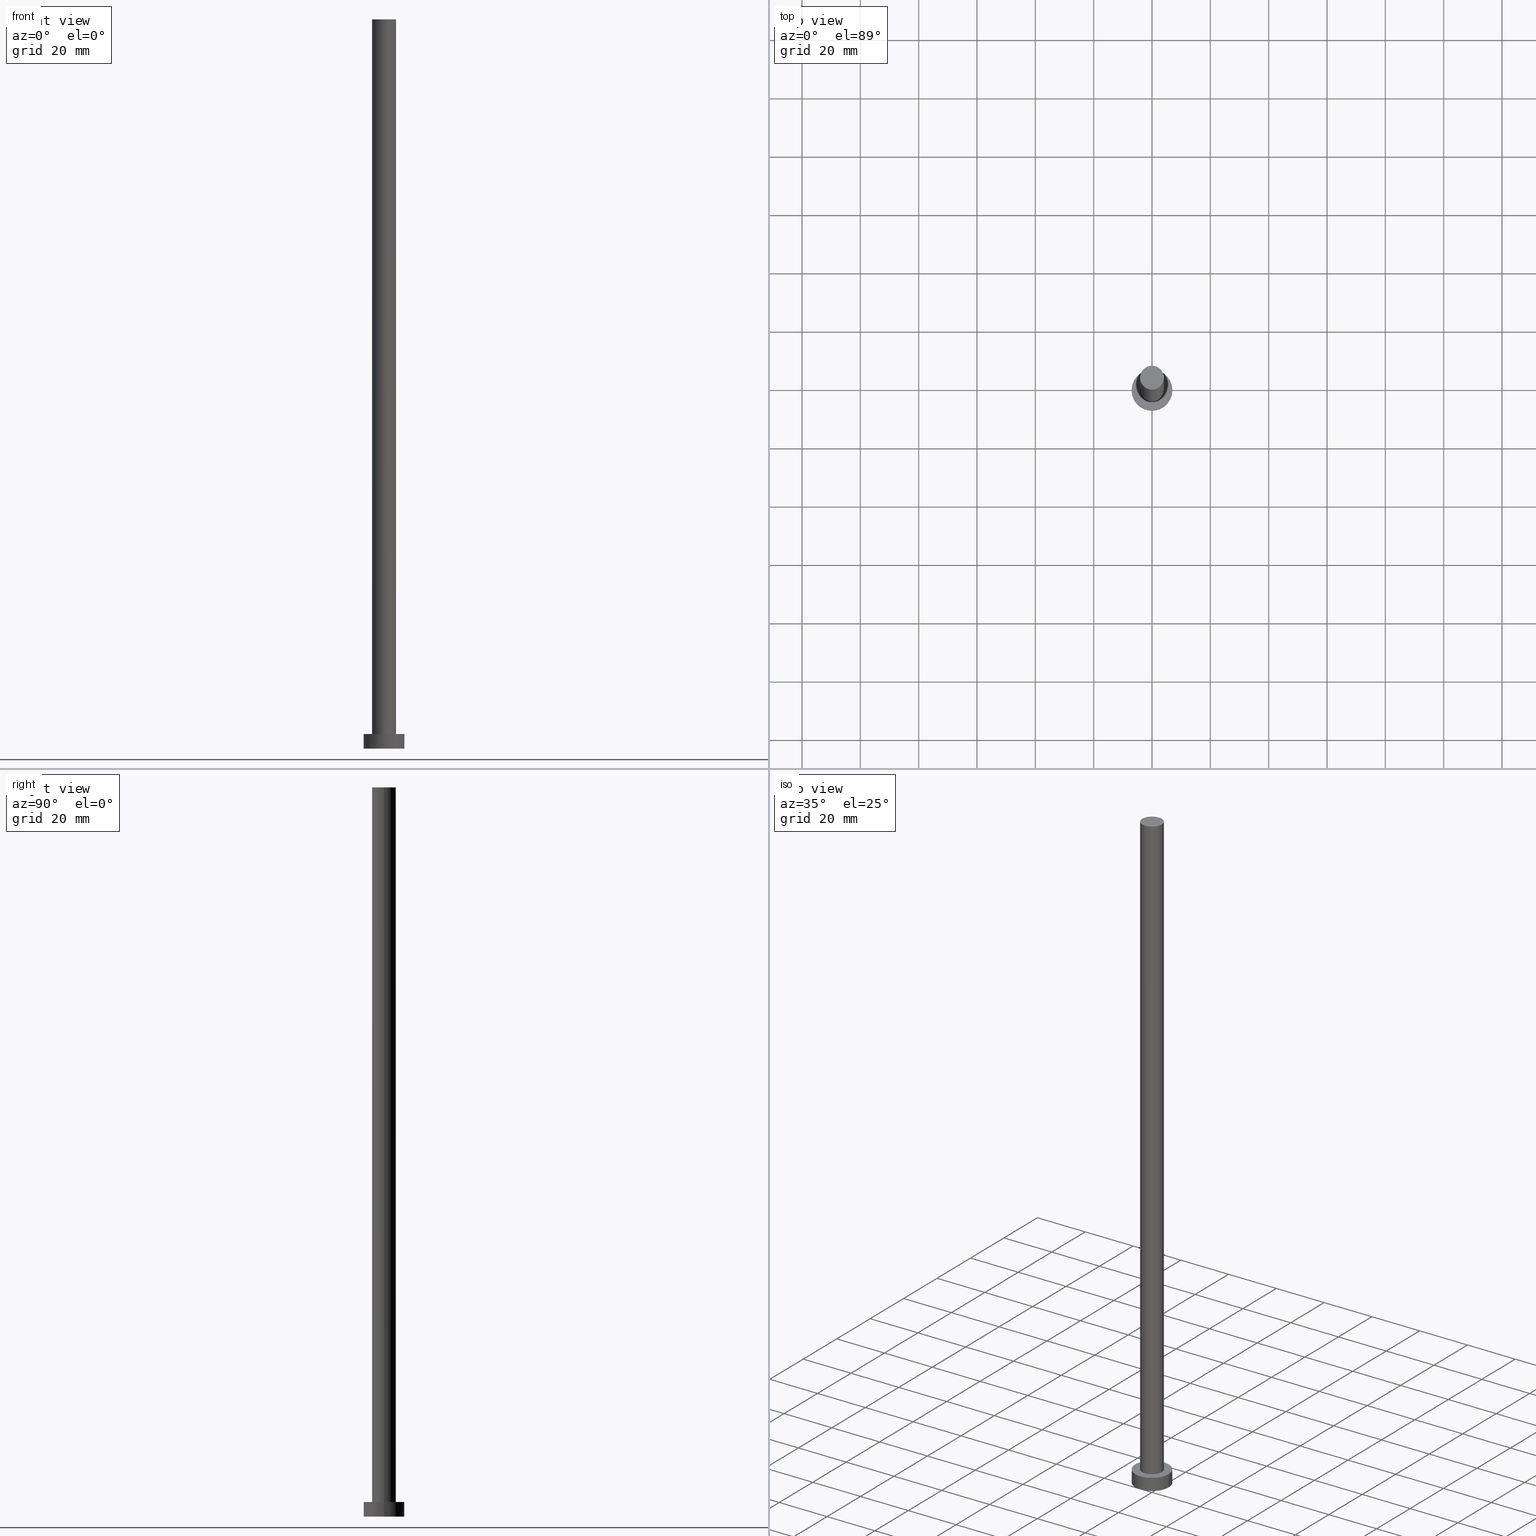
[diagram: canonical four-view strip — front | top / right | iso, engineering-drawing reading convention]
A machine part, canonical four-view strip (front | top / right | iso — engineering-drawing reading convention). The complete STEP part file that produces these views, byte-faithful:
ISO-10303-21;
HEADER;
FILE_DESCRIPTION (( 'STEP AP203' ),
    '1' );
FILE_NAME ('0139.STEP',
    '2023-02-13T10:52:26',
    ( '' ),
    ( '' ),
    'SwSTEP 2.0',
    'SolidWorks 2019',
    '' );
FILE_SCHEMA (( 'CONFIG_CONTROL_DESIGN' ));
ENDSEC;

DATA;
#1 = EDGE_LOOP ( 'NONE', ( #200, #201 ) ) ;
#2 = ORIENTED_EDGE ( 'NONE', *, *, #164, .F. ) ;
#3 = ADVANCED_FACE ( 'NONE', ( #152 ), #114, .F. ) ;
#4 = EDGE_CURVE ( 'NONE', #144, #126, #17, .T. ) ;
#5 = DIRECTION ( 'NONE',  ( 0.000000000000000000, 0.000000000000000000, 1.000000000000000000 ) ) ;
#6 = CARTESIAN_POINT ( 'NONE',  ( 0.000000000000000000, 0.000000000000000000, 250.0000000000000000 ) ) ;
#7 = CIRCLE ( 'NONE', #72, 4.099999999999999645 ) ;
#8 = APPROVAL_PERSON_ORGANIZATION ( #195, #175, #179 ) ;
#9 = CARTESIAN_POINT ( 'NONE',  ( -7.000000000000000000, 0.000000000000000000, 5.000000000000000000 ) ) ;
#10 = APPROVAL_DATE_TIME ( #249, #88 ) ;
#11 = VERTEX_POINT ( 'NONE', #207 ) ;
#12 = DIRECTION ( 'NONE',  ( -1.000000000000000000, 0.000000000000000000, 0.000000000000000000 ) ) ;
#13 = ORIENTED_EDGE ( 'NONE', *, *, #4, .F. ) ;
#14 = PERSON_AND_ORGANIZATION_ROLE ( 'creator' ) ;
#15 = AXIS2_PLACEMENT_3D ( 'NONE', #153, #167, #12 ) ;
#16 = CYLINDRICAL_SURFACE ( 'NONE', #42, 4.099999999999999645 ) ;
#17 = CIRCLE ( 'NONE', #23, 7.000000000000000000 ) ;
#18 = CARTESIAN_POINT ( 'NONE',  ( -4.099999999999999645, 0.000000000000000000, 5.000000000000000000 ) ) ;
#19 = DIRECTION ( 'NONE',  ( 0.000000000000000000, 0.000000000000000000, 1.000000000000000000 ) ) ;
#20 = ADVANCED_FACE ( 'NONE', ( #227 ), #33, .T. ) ;
#21 = DIRECTION ( 'NONE',  ( 0.000000000000000000, 0.000000000000000000, 1.000000000000000000 ) ) ;
#22 = APPROVAL_PERSON_ORGANIZATION ( #185, #88, #194 ) ;
#23 = AXIS2_PLACEMENT_3D ( 'NONE', #225, #63, #145 ) ;
#24 = DIRECTION ( 'NONE',  ( 1.000000000000000000, 0.000000000000000000, 0.000000000000000000 ) ) ;
#25 = DESIGN_CONTEXT ( 'detailed design', #73, 'design' ) ;
#26 = ORIENTED_EDGE ( 'NONE', *, *, #62, .F. ) ;
#27 = EDGE_CURVE ( 'NONE', #234, #160, #115, .T. ) ;
#28 = PERSON_AND_ORGANIZATION_ROLE ( 'classification_officer' ) ;
#29 = CARTESIAN_POINT ( 'NONE',  ( 0.000000000000000000, 0.000000000000000000, 0.000000000000000000 ) ) ;
#30 = DIRECTION ( 'NONE',  ( 1.000000000000000000, 0.000000000000000000, 0.000000000000000000 ) ) ;
#31 = EDGE_CURVE ( 'NONE', #36, #244, #52, .T. ) ;
#32 = CARTESIAN_POINT ( 'NONE',  ( 7.000000000000000000, 8.572527594031473190E-16, 5.000000000000000000 ) ) ;
#33 = PLANE ( 'NONE',  #78 ) ;
#34 = PERSON_AND_ORGANIZATION ( #44, #39 ) ;
#35 = FACE_BOUND ( 'NONE', #197, .T. ) ;
#36 = VERTEX_POINT ( 'NONE', #98 ) ;
#37 = APPROVAL ( #230, 'NEUR�EN�' ) ;
#38 = VERTEX_POINT ( 'NONE', #162 ) ;
#39 = ORGANIZATION ( 'NEUR�EN�', 'NEUR�EN�', '' ) ;
#40 =( LENGTH_UNIT ( ) NAMED_UNIT ( * ) SI_UNIT ( .MILLI., .METRE. ) );
#41 = CC_DESIGN_DATE_AND_TIME_ASSIGNMENT ( #105, #131, ( #209 ) ) ;
#42 = AXIS2_PLACEMENT_3D ( 'NONE', #147, #87, #166 ) ;
#43 = CARTESIAN_POINT ( 'NONE',  ( 7.000000000000000000, 8.572527594031473190E-16, 5.000000000000000000 ) ) ;
#44 = PERSON ( 'NEUR�EN�', 'NEUR�EN�', 'NEUR�EN�', ('NEUR�EN�'), ('NEUR�EN�'), ('NEUR�EN�') ) ;
#45 = COORDINATED_UNIVERSAL_TIME_OFFSET ( 1, 0, .AHEAD. ) ;
#46 = CIRCLE ( 'NONE', #191, 4.099999999999999645 ) ;
#47 = AXIS2_PLACEMENT_3D ( 'NONE', #69, #116, #202 ) ;
#48 = CC_DESIGN_DATE_AND_TIME_ASSIGNMENT ( #189, #124, ( #246 ) ) ;
#49 = PERSON_AND_ORGANIZATION ( #44, #39 ) ;
#50 = CC_DESIGN_PERSON_AND_ORGANIZATION_ASSIGNMENT ( #223, #123, ( #113 ) ) ;
#51 = COORDINATED_UNIVERSAL_TIME_OFFSET ( 1, 0, .AHEAD. ) ;
#52 = CIRCLE ( 'NONE', #173, 4.099999999999999645 ) ;
#53 = ORIENTED_EDGE ( 'NONE', *, *, #239, .T. ) ;
#54 =( NAMED_UNIT ( * ) PLANE_ANGLE_UNIT ( ) SI_UNIT ( $, .RADIAN. ) );
#55 = CARTESIAN_POINT ( 'NONE',  ( -4.099999999999999645, 0.000000000000000000, 250.0000000000000000 ) ) ;
#56 = DIRECTION ( 'NONE',  ( -1.000000000000000000, 0.000000000000000000, 0.000000000000000000 ) ) ;
#57 = ORIENTED_EDGE ( 'NONE', *, *, #150, .F. ) ;
#58 = ORIENTED_EDGE ( 'NONE', *, *, #150, .T. ) ;
#59 = DIRECTION ( 'NONE',  ( 0.000000000000000000, 0.000000000000000000, 1.000000000000000000 ) ) ;
#60 = VECTOR ( 'NONE', #253, 1000.000000000000000 ) ;
#61 = DIRECTION ( 'NONE',  ( 1.000000000000000000, 0.000000000000000000, 0.000000000000000000 ) ) ;
#62 = EDGE_CURVE ( 'NONE', #126, #144, #86, .T. ) ;
#63 = DIRECTION ( 'NONE',  ( 0.000000000000000000, 0.000000000000000000, 1.000000000000000000 ) ) ;
#64 = ORIENTED_EDGE ( 'NONE', *, *, #31, .T. ) ;
#65 = CIRCLE ( 'NONE', #47, 7.000000000000000000 ) ;
#66 = APPROVAL_DATE_TIME ( #68, #175 ) ;
#67 = FACE_OUTER_BOUND ( 'NONE', #248, .T. ) ;
#68 = DATE_AND_TIME ( #255, #79 ) ;
#69 = CARTESIAN_POINT ( 'NONE',  ( 0.000000000000000000, 0.000000000000000000, 0.000000000000000000 ) ) ;
#70 = PRODUCT_DEFINITION_SHAPE ( 'NONE', 'NONE',  #209 ) ;
#71 = PERSON_AND_ORGANIZATION ( #44, #39 ) ;
#72 = AXIS2_PLACEMENT_3D ( 'NONE', #6, #238, #24 ) ;
#73 = APPLICATION_CONTEXT ( 'configuration controlled 3d designs of mechanical parts and assemblies' ) ;
#74 = LOCAL_TIME ( 11, 52, 26.00000000000000000, #174 ) ;
#75 = ORIENTED_EDGE ( 'NONE', *, *, #164, .T. ) ;
#76 = DIRECTION ( 'NONE',  ( 0.000000000000000000, 0.000000000000000000, 1.000000000000000000 ) ) ;
#77 = ORIENTED_EDGE ( 'NONE', *, *, #112, .F. ) ;
#78 = AXIS2_PLACEMENT_3D ( 'NONE', #158, #199, #177 ) ;
#79 = LOCAL_TIME ( 11, 52, 26.00000000000000000, #51 ) ;
#80 = EDGE_LOOP ( 'NONE', ( #94, #231, #58, #2 ) ) ;
#81 = DIRECTION ( 'NONE',  ( 0.000000000000000000, 0.000000000000000000, 1.000000000000000000 ) ) ;
#82 = CARTESIAN_POINT ( 'NONE',  ( -4.099999999999999645, 0.000000000000000000, 250.0000000000000000 ) ) ;
#83 = AXIS2_PLACEMENT_3D ( 'NONE', #95, #76, #104 ) ;
#84 = MANIFOLD_SOLID_BREP ( 'P�idat vysunut�m3', #133 ) ;
#85 = LINE ( 'NONE', #213, #154 ) ;
#86 = CIRCLE ( 'NONE', #235, 7.000000000000000000 ) ;
#87 = DIRECTION ( 'NONE',  ( -0.000000000000000000, -0.000000000000000000, -1.000000000000000000 ) ) ;
#88 = APPROVAL ( #165, 'NEUR�EN�' ) ;
#89 = AXIS2_PLACEMENT_3D ( 'NONE', #163, #5, #206 ) ;
#90 = PERSON_AND_ORGANIZATION ( #44, #39 ) ;
#91 = LINE ( 'NONE', #252, #120 ) ;
#92 = APPLICATION_PROTOCOL_DEFINITION ( 'international standard', 'config_control_design', 1994, #73 ) ;
#93 = ORIENTED_EDGE ( 'NONE', *, *, #171, .F. ) ;
#94 = ORIENTED_EDGE ( 'NONE', *, *, #31, .F. ) ;
#95 = CARTESIAN_POINT ( 'NONE',  ( 0.000000000000000000, 0.000000000000000000, 0.000000000000000000 ) ) ;
#96 = CARTESIAN_POINT ( 'NONE',  ( 0.000000000000000000, 0.000000000000000000, 5.000000000000000000 ) ) ;
#97 = CC_DESIGN_APPROVAL ( #175, ( #209 ) ) ;
#98 = CARTESIAN_POINT ( 'NONE',  ( 4.099999999999999645, 5.021051876504147385E-16, 250.0000000000000000 ) ) ;
#99 = DIRECTION ( 'NONE',  ( 1.000000000000000000, 0.000000000000000000, 0.000000000000000000 ) ) ;
#100 = ORIENTED_EDGE ( 'NONE', *, *, #187, .F. ) ;
#101 = EDGE_CURVE ( 'NONE', #11, #38, #119, .T. ) ;
#102 = LOCAL_TIME ( 11, 52, 26.00000000000000000, #103 ) ;
#103 = COORDINATED_UNIVERSAL_TIME_OFFSET ( 1, 0, .AHEAD. ) ;
#104 = DIRECTION ( 'NONE',  ( 1.000000000000000000, 0.000000000000000000, -0.000000000000000000 ) ) ;
#105 = DATE_AND_TIME ( #149, #74 ) ;
#106 = DIRECTION ( 'NONE',  ( 0.000000000000000000, 0.000000000000000000, 1.000000000000000000 ) ) ;
#107 = EDGE_LOOP ( 'NONE', ( #208, #184 ) ) ;
#108 = APPROVAL_ROLE ( '' ) ;
#109 = CARTESIAN_POINT ( 'NONE',  ( 0.000000000000000000, 0.000000000000000000, 5.000000000000000000 ) ) ;
#110 = VECTOR ( 'NONE', #121, 1000.000000000000000 ) ;
#111 = PERSON_AND_ORGANIZATION_ROLE ( 'design_supplier' ) ;
#112 = EDGE_CURVE ( 'NONE', #244, #36, #7, .T. ) ;
#113 = PRODUCT ( '0139', '0139', '', ( #212 ) ) ;
#114 = PLANE ( 'NONE',  #83 ) ;
#115 = CIRCLE ( 'NONE', #210, 4.099999999999999645 ) ;
#116 = DIRECTION ( 'NONE',  ( 0.000000000000000000, 0.000000000000000000, 1.000000000000000000 ) ) ;
#117 = EDGE_CURVE ( 'NONE', #126, #38, #85, .T. ) ;
#118 = CYLINDRICAL_SURFACE ( 'NONE', #159, 7.000000000000000000 ) ;
#119 = CIRCLE ( 'NONE', #89, 7.000000000000000000 ) ;
#120 = VECTOR ( 'NONE', #130, 1000.000000000000000 ) ;
#121 = DIRECTION ( 'NONE',  ( -0.000000000000000000, -0.000000000000000000, -1.000000000000000000 ) ) ;
#122 = LOCAL_TIME ( 11, 52, 26.00000000000000000, #45 ) ;
#123 = PERSON_AND_ORGANIZATION_ROLE ( 'design_owner' ) ;
#124 = DATE_TIME_ROLE ( 'classification_date' ) ;
#125 = CARTESIAN_POINT ( 'NONE',  ( 0.000000000000000000, 0.000000000000000000, 5.000000000000000000 ) ) ;
#126 = VERTEX_POINT ( 'NONE', #9 ) ;
#127 = CYLINDRICAL_SURFACE ( 'NONE', #15, 4.099999999999999645 ) ;
#128 = ORIENTED_EDGE ( 'NONE', *, *, #27, .T. ) ;
#129 = PERSON_AND_ORGANIZATION ( #44, #39 ) ;
#130 = DIRECTION ( 'NONE',  ( -0.000000000000000000, -0.000000000000000000, -1.000000000000000000 ) ) ;
#131 = DATE_TIME_ROLE ( 'creation_date' ) ;
#132 = DIRECTION ( 'NONE',  ( 1.000000000000000000, 0.000000000000000000, -0.000000000000000000 ) ) ;
#133 = CLOSED_SHELL ( 'NONE', ( #138, #233, #226, #198, #3, #143, #20 ) ) ;
#134 = CC_DESIGN_PERSON_AND_ORGANIZATION_ASSIGNMENT ( #34, #28, ( #246 ) ) ;
#135 = APPLICATION_CONTEXT ( 'configuration controlled 3d designs of mechanical parts and assemblies' ) ;
#136 = DIRECTION ( 'NONE',  ( 1.000000000000000000, 0.000000000000000000, 0.000000000000000000 ) ) ;
#137 = AXIS2_PLACEMENT_3D ( 'NONE', #236, #21, #132 ) ;
#138 = ADVANCED_FACE ( 'NONE', ( #172 ), #127, .T. ) ;
#139 = ORIENTED_EDGE ( 'NONE', *, *, #112, .T. ) ;
#140 = CC_DESIGN_APPROVAL ( #88, ( #246 ) ) ;
#141 = EDGE_LOOP ( 'NONE', ( #13, #254, #142, #243 ) ) ;
#142 = ORIENTED_EDGE ( 'NONE', *, *, #101, .T. ) ;
#143 = ADVANCED_FACE ( 'NONE', ( #67 ), #16, .T. ) ;
#144 = VERTEX_POINT ( 'NONE', #32 ) ;
#145 = DIRECTION ( 'NONE',  ( 1.000000000000000000, 0.000000000000000000, 0.000000000000000000 ) ) ;
#146 = CALENDAR_DATE ( 2023, 13, 2 ) ;
#147 = CARTESIAN_POINT ( 'NONE',  ( 0.000000000000000000, 0.000000000000000000, 250.0000000000000000 ) ) ;
#148 = LOCAL_TIME ( 11, 52, 26.00000000000000000, #214 ) ;
#149 = CALENDAR_DATE ( 2023, 13, 2 ) ;
#150 = EDGE_CURVE ( 'NONE', #160, #234, #46, .T. ) ;
#151 = DATE_AND_TIME ( #170, #148 ) ;
#152 = FACE_OUTER_BOUND ( 'NONE', #107, .T. ) ;
#153 = CARTESIAN_POINT ( 'NONE',  ( 0.000000000000000000, 0.000000000000000000, 250.0000000000000000 ) ) ;
#154 = VECTOR ( 'NONE', #229, 1000.000000000000000 ) ;
#155 = CC_DESIGN_SECURITY_CLASSIFICATION ( #246, ( #203 ) ) ;
#156 = PLANE ( 'NONE',  #137 ) ;
#157 = CARTESIAN_POINT ( 'NONE',  ( 0.000000000000000000, 0.000000000000000000, 250.0000000000000000 ) ) ;
#158 = CARTESIAN_POINT ( 'NONE',  ( 0.000000000000000000, 0.000000000000000000, 250.0000000000000000 ) ) ;
#159 = AXIS2_PLACEMENT_3D ( 'NONE', #96, #240, #217 ) ;
#160 = VERTEX_POINT ( 'NONE', #183 ) ;
#161 = DIRECTION ( 'NONE',  ( 1.000000000000000000, 0.000000000000000000, 0.000000000000000000 ) ) ;
#162 = CARTESIAN_POINT ( 'NONE',  ( -7.000000000000000000, 0.000000000000000000, 0.000000000000000000 ) ) ;
#163 = CARTESIAN_POINT ( 'NONE',  ( 0.000000000000000000, 0.000000000000000000, 0.000000000000000000 ) ) ;
#164 = EDGE_CURVE ( 'NONE', #244, #234, #186, .T. ) ;
#165 = APPROVAL_STATUS ( 'not_yet_approved' ) ;
#166 = DIRECTION ( 'NONE',  ( -1.000000000000000000, 0.000000000000000000, 0.000000000000000000 ) ) ;
#167 = DIRECTION ( 'NONE',  ( -0.000000000000000000, -0.000000000000000000, -1.000000000000000000 ) ) ;
#168 =( NAMED_UNIT ( * ) SI_UNIT ( $, .STERADIAN. ) SOLID_ANGLE_UNIT ( ) );
#169 = DIRECTION ( 'NONE',  ( 0.000000000000000000, 0.000000000000000000, 1.000000000000000000 ) ) ;
#170 = CALENDAR_DATE ( 2023, 13, 2 ) ;
#171 = EDGE_CURVE ( 'NONE', #144, #11, #242, .T. ) ;
#172 = FACE_OUTER_BOUND ( 'NONE', #80, .T. ) ;
#173 = AXIS2_PLACEMENT_3D ( 'NONE', #157, #81, #161 ) ;
#174 = COORDINATED_UNIVERSAL_TIME_OFFSET ( 1, 0, .AHEAD. ) ;
#175 = APPROVAL ( #216, 'NEUR�EN�' ) ;
#176 = EDGE_LOOP ( 'NONE', ( #139, #64 ) ) ;
#177 = DIRECTION ( 'NONE',  ( 1.000000000000000000, 0.000000000000000000, -0.000000000000000000 ) ) ;
#178 = FACE_OUTER_BOUND ( 'NONE', #1, .T. ) ;
#179 = APPROVAL_ROLE ( '' ) ;
#180 = CARTESIAN_POINT ( 'NONE',  ( 0.000000000000000000, 0.000000000000000000, 5.000000000000000000 ) ) ;
#181 = CARTESIAN_POINT ( 'NONE',  ( 0.000000000000000000, 0.000000000000000000, 5.000000000000000000 ) ) ;
#182 = CC_DESIGN_PERSON_AND_ORGANIZATION_ASSIGNMENT ( #90, #111, ( #203 ) ) ;
#183 = CARTESIAN_POINT ( 'NONE',  ( 4.099999999999999645, 5.021051876504147385E-16, 5.000000000000000000 ) ) ;
#184 = ORIENTED_EDGE ( 'NONE', *, *, #101, .F. ) ;
#185 = PERSON_AND_ORGANIZATION ( #44, #39 ) ;
#186 = LINE ( 'NONE', #82, #110 ) ;
#187 = EDGE_CURVE ( 'NONE', #36, #160, #91, .T. ) ;
#188 = CYLINDRICAL_SURFACE ( 'NONE', #215, 7.000000000000000000 ) ;
#189 = DATE_AND_TIME ( #146, #122 ) ;
#190 = ORIENTED_EDGE ( 'NONE', *, *, #27, .F. ) ;
#191 = AXIS2_PLACEMENT_3D ( 'NONE', #109, #59, #99 ) ;
#192 = ADVANCED_BREP_SHAPE_REPRESENTATION ( '0139', ( #84, #193 ), #251 ) ;
#193 = AXIS2_PLACEMENT_3D ( 'NONE', #29, #106, #61 ) ;
#194 = APPROVAL_ROLE ( '' ) ;
#195 = PERSON_AND_ORGANIZATION ( #44, #39 ) ;
#196 = APPLICATION_PROTOCOL_DEFINITION ( 'international standard', 'config_control_design', 1994, #135 ) ;
#197 = EDGE_LOOP ( 'NONE', ( #190, #57 ) ) ;
#198 = ADVANCED_FACE ( 'NONE', ( #35, #178 ), #156, .T. ) ;
#199 = DIRECTION ( 'NONE',  ( 0.000000000000000000, 0.000000000000000000, 1.000000000000000000 ) ) ;
#200 = ORIENTED_EDGE ( 'NONE', *, *, #62, .T. ) ;
#201 = ORIENTED_EDGE ( 'NONE', *, *, #4, .T. ) ;
#202 = DIRECTION ( 'NONE',  ( 1.000000000000000000, 0.000000000000000000, 0.000000000000000000 ) ) ;
#203 = PRODUCT_DEFINITION_FORMATION_WITH_SPECIFIED_SOURCE ( 'LIBOVOLN�', '', #113, .NOT_KNOWN. ) ;
#204 = UNCERTAINTY_MEASURE_WITH_UNIT (LENGTH_MEASURE( 1.000000000000000082E-05 ), #40, 'distance_accuracy_value', 'NONE');
#205 = CALENDAR_DATE ( 2023, 13, 2 ) ;
#206 = DIRECTION ( 'NONE',  ( 1.000000000000000000, 0.000000000000000000, 0.000000000000000000 ) ) ;
#207 = CARTESIAN_POINT ( 'NONE',  ( 7.000000000000000000, 8.572527594031473190E-16, 0.000000000000000000 ) ) ;
#208 = ORIENTED_EDGE ( 'NONE', *, *, #239, .F. ) ;
#209 = PRODUCT_DEFINITION ( 'NEZN�M�', '', #203, #25 ) ;
#210 = AXIS2_PLACEMENT_3D ( 'NONE', #180, #19, #136 ) ;
#211 = PRODUCT_RELATED_PRODUCT_CATEGORY ( 'detail', '', ( #113 ) ) ;
#212 = MECHANICAL_CONTEXT ( 'NONE', #135, 'mechanical' ) ;
#213 = CARTESIAN_POINT ( 'NONE',  ( -7.000000000000000000, 0.000000000000000000, 5.000000000000000000 ) ) ;
#214 = COORDINATED_UNIVERSAL_TIME_OFFSET ( 1, 0, .AHEAD. ) ;
#215 = AXIS2_PLACEMENT_3D ( 'NONE', #181, #241, #56 ) ;
#216 = APPROVAL_STATUS ( 'not_yet_approved' ) ;
#217 = DIRECTION ( 'NONE',  ( -1.000000000000000000, 0.000000000000000000, 0.000000000000000000 ) ) ;
#218 = CC_DESIGN_APPROVAL ( #37, ( #203 ) ) ;
#219 = FACE_OUTER_BOUND ( 'NONE', #141, .T. ) ;
#220 = EDGE_LOOP ( 'NONE', ( #93, #26, #221, #53 ) ) ;
#221 = ORIENTED_EDGE ( 'NONE', *, *, #117, .T. ) ;
#222 = APPROVAL_PERSON_ORGANIZATION ( #129, #37, #108 ) ;
#223 = PERSON_AND_ORGANIZATION ( #44, #39 ) ;
#224 = FACE_OUTER_BOUND ( 'NONE', #220, .T. ) ;
#225 = CARTESIAN_POINT ( 'NONE',  ( 0.000000000000000000, 0.000000000000000000, 5.000000000000000000 ) ) ;
#226 = ADVANCED_FACE ( 'NONE', ( #224 ), #188, .T. ) ;
#227 = FACE_OUTER_BOUND ( 'NONE', #176, .T. ) ;
#228 = CC_DESIGN_PERSON_AND_ORGANIZATION_ASSIGNMENT ( #49, #14, ( #203 ) ) ;
#229 = DIRECTION ( 'NONE',  ( -0.000000000000000000, -0.000000000000000000, -1.000000000000000000 ) ) ;
#230 = APPROVAL_STATUS ( 'not_yet_approved' ) ;
#231 = ORIENTED_EDGE ( 'NONE', *, *, #187, .T. ) ;
#232 = SECURITY_CLASSIFICATION_LEVEL ( 'unclassified' ) ;
#233 = ADVANCED_FACE ( 'NONE', ( #219 ), #118, .T. ) ;
#234 = VERTEX_POINT ( 'NONE', #18 ) ;
#235 = AXIS2_PLACEMENT_3D ( 'NONE', #125, #169, #30 ) ;
#236 = CARTESIAN_POINT ( 'NONE',  ( 0.000000000000000000, 0.000000000000000000, 5.000000000000000000 ) ) ;
#237 = PERSON_AND_ORGANIZATION_ROLE ( 'creator' ) ;
#238 = DIRECTION ( 'NONE',  ( 0.000000000000000000, 0.000000000000000000, 1.000000000000000000 ) ) ;
#239 = EDGE_CURVE ( 'NONE', #38, #11, #65, .T. ) ;
#240 = DIRECTION ( 'NONE',  ( -0.000000000000000000, -0.000000000000000000, -1.000000000000000000 ) ) ;
#241 = DIRECTION ( 'NONE',  ( -0.000000000000000000, -0.000000000000000000, -1.000000000000000000 ) ) ;
#242 = LINE ( 'NONE', #43, #60 ) ;
#243 = ORIENTED_EDGE ( 'NONE', *, *, #117, .F. ) ;
#244 = VERTEX_POINT ( 'NONE', #55 ) ;
#245 = CC_DESIGN_PERSON_AND_ORGANIZATION_ASSIGNMENT ( #71, #237, ( #209 ) ) ;
#246 = SECURITY_CLASSIFICATION ( '', '', #232 ) ;
#247 = SHAPE_DEFINITION_REPRESENTATION ( #70, #192 ) ;
#248 = EDGE_LOOP ( 'NONE', ( #100, #77, #75, #128 ) ) ;
#249 = DATE_AND_TIME ( #205, #102 ) ;
#250 = APPROVAL_DATE_TIME ( #151, #37 ) ;
#251 =( GEOMETRIC_REPRESENTATION_CONTEXT ( 3 ) GLOBAL_UNCERTAINTY_ASSIGNED_CONTEXT ( ( #204 ) ) GLOBAL_UNIT_ASSIGNED_CONTEXT ( ( #40, #54, #168 ) ) REPRESENTATION_CONTEXT ( 'NONE', 'WORKASPACE' ) );
#252 = CARTESIAN_POINT ( 'NONE',  ( 4.099999999999999645, 5.021051876504147385E-16, 250.0000000000000000 ) ) ;
#253 = DIRECTION ( 'NONE',  ( -0.000000000000000000, -0.000000000000000000, -1.000000000000000000 ) ) ;
#254 = ORIENTED_EDGE ( 'NONE', *, *, #171, .T. ) ;
#255 = CALENDAR_DATE ( 2023, 13, 2 ) ;
ENDSEC;
END-ISO-10303-21;
